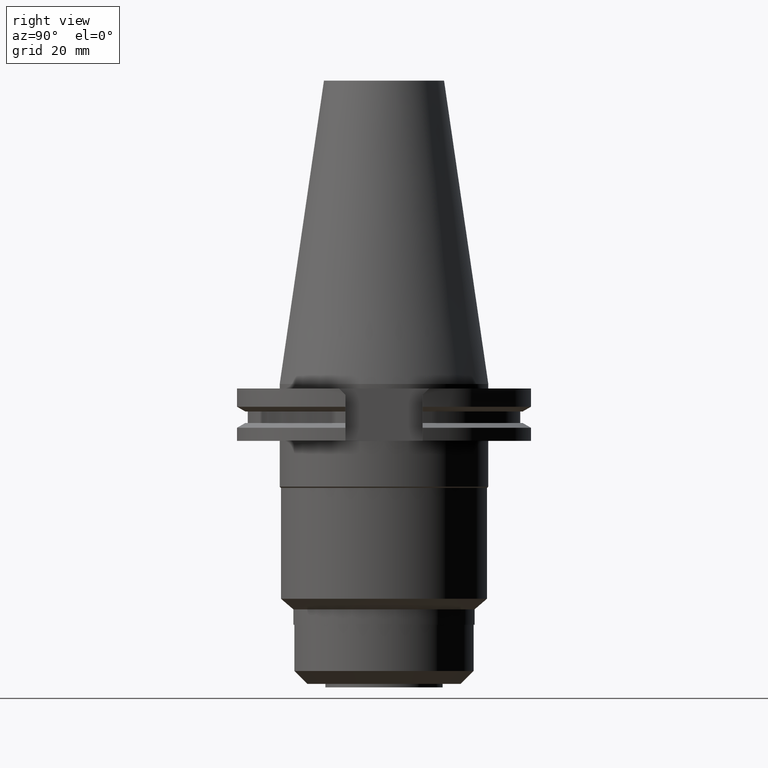
[diagram: clean part render]
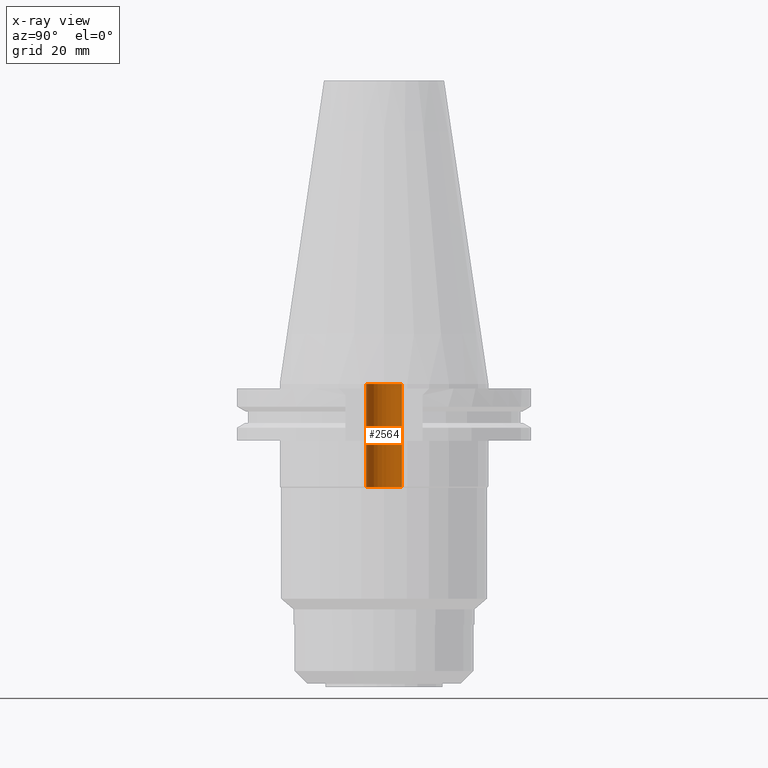
[diagram: x-ray — body ghosted, one internal face saturated and labeled with its STEP entity id]
A machine part, right view, then the same camera in x-ray: the body is ghosted and one INTERNAL B-rep face — a face not visible from any outside direction — is saturated and labeled: STEP entity #2564.
In plain terms, the highlighted cylindrical surface (edge-blend (fillet) strip) has radius 6 mm, axis along (0, 0, -1).
Its self-contained STEP definition (entity closure, byte-faithful):
#1212=CARTESIAN_POINT('',(0.E0,2.593312061874E-14,-3.46E1));
#1213=DIRECTION('',(0.E0,0.E0,-1.E0));
#1214=DIRECTION('',(0.E0,-1.E0,0.E0));
#1215=AXIS2_PLACEMENT_3D('',#1212,#1213,#1214);
#1228=DIRECTION('',(0.E0,0.E0,1.E0));
#1229=VECTOR('',#1228,3.46E1);
#1230=CARTESIAN_POINT('',(0.E0,-6.E0,-3.46E1));
#1231=LINE('',#1230,#1229);
#1235=CARTESIAN_POINT('',(0.E0,2.593312061874E-14,-1.989519660128E-13));
#1236=DIRECTION('',(0.E0,0.E0,-1.E0));
#1237=DIRECTION('',(0.E0,-1.E0,0.E0));
#1238=AXIS2_PLACEMENT_3D('',#1235,#1236,#1237);
#1243=DIRECTION('',(0.E0,0.E0,1.E0));
#1244=VECTOR('',#1243,3.46E1);
#1245=CARTESIAN_POINT('',(0.E0,6.E0,-3.46E1));
#1246=LINE('',#1245,#1244);
#1388=CARTESIAN_POINT('',(0.E0,6.E0,-1.705302565824E-13));
#1389=VERTEX_POINT('',#1388);
#1390=CARTESIAN_POINT('',(0.E0,-6.E0,-1.705302565824E-13));
#1391=VERTEX_POINT('',#1390);
#1392=CARTESIAN_POINT('',(0.E0,6.E0,-3.46E1));
#1393=VERTEX_POINT('',#1392);
#1394=CARTESIAN_POINT('',(0.E0,-6.E0,-3.46E1));
#1395=VERTEX_POINT('',#1394);
#2550=CARTESIAN_POINT('',(0.E0,2.593312061874E-14,1.1176E2));
#2551=DIRECTION('',(0.E0,0.E0,-1.E0));
#2552=DIRECTION('',(0.E0,-1.E0,0.E0));
#2553=AXIS2_PLACEMENT_3D('',#2550,#2551,#2552);
#2554=CYLINDRICAL_SURFACE('',#2553,6.E0);
#2556=ORIENTED_EDGE('',*,*,#2555,.F.);
#2557=ORIENTED_EDGE('',*,*,#2543,.F.);
#2559=ORIENTED_EDGE('',*,*,#2558,.T.);
#2561=ORIENTED_EDGE('',*,*,#2560,.T.);
#2562=EDGE_LOOP('',(#2556,#2557,#2559,#2561));
#2563=FACE_OUTER_BOUND('',#2562,.F.);
#1216=CIRCLE('',#1215,6.E0);
#1239=CIRCLE('',#1238,6.E0);
#2543=EDGE_CURVE('',#1395,#1393,#1216,.T.);
#2555=EDGE_CURVE('',#1393,#1389,#1246,.T.);
#2558=EDGE_CURVE('',#1395,#1391,#1231,.T.);
#2560=EDGE_CURVE('',#1391,#1389,#1239,.T.);
#2564=ADVANCED_FACE('',(#2563),#2554,.F.);